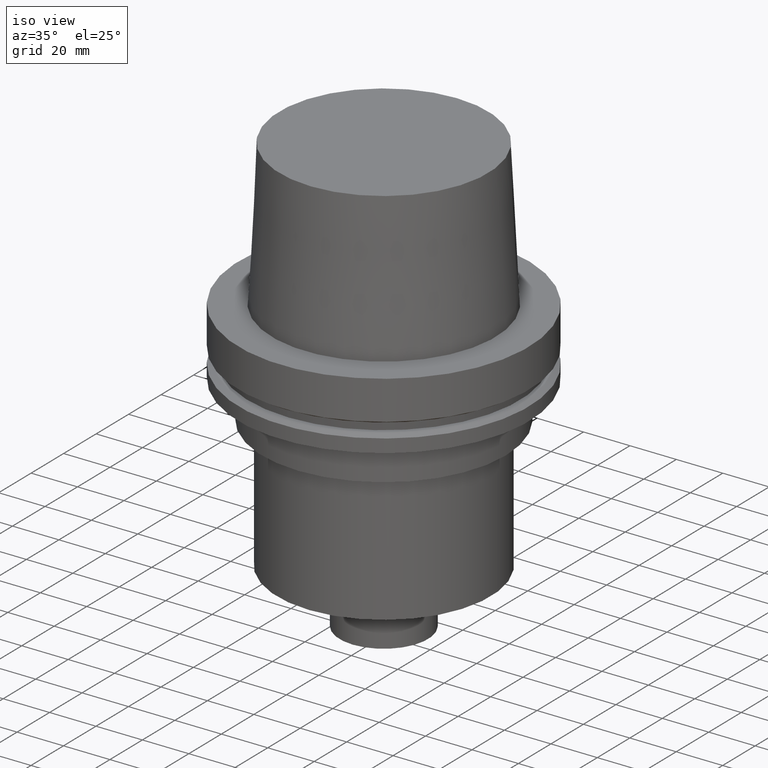
[diagram: clean part render]
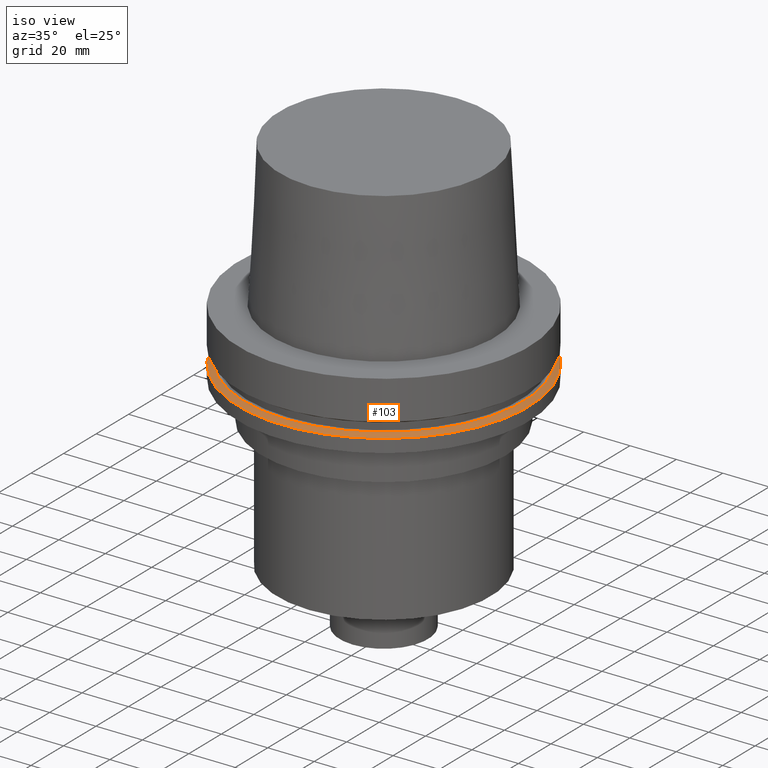
[diagram: same view with one face highlighted and labeled with its STEP entity id]
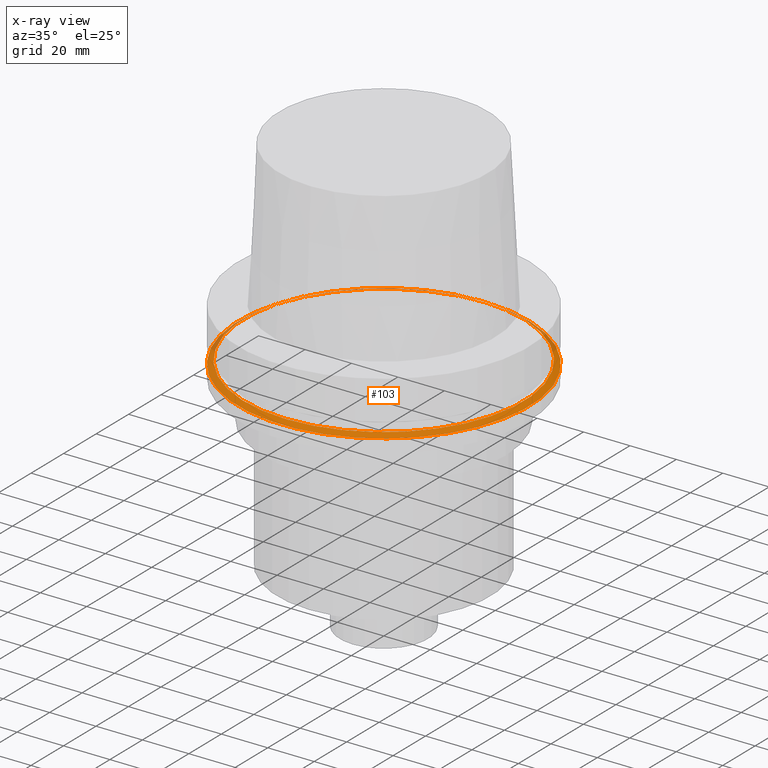
[diagram: x-ray of the same camera — body ghosted, the highlighted face saturated]
A machine part, iso view. The second image highlights one B-rep face of the part: STEP entity #103.
The next image is the same camera in x-ray: the body ghosted, the highlighted face saturated — about 12% of this face is hidden behind the body in this view.
In plain terms, the highlighted conical surface has half-angle 60 deg.
Its self-contained STEP definition (entity closure, byte-faithful):
#103=ADVANCED_FACE('Unnamed[1]',(#234,#235),#236,.T.);
#110=EDGE_CURVE('Unnamed[1]',#246,#246,#247,.T.);
#126=EDGE_CURVE('Unnamed[1]',#270,#270,#271,.T.);
#234=FACE_BOUND('',#397,.T.);
#235=FACE_BOUND('',#398,.T.);
#236=CONICAL_SURFACE('',#399,61.311297632097,1.04719755119646);
#246=VERTEX_POINT('',#412);
#247=CIRCLE('',#413,60.122595264194);
#270=VERTEX_POINT('',#443);
#271=CIRCLE('',#444,62.5);
#397=EDGE_LOOP('',(#568));
#398=EDGE_LOOP('',(#569));
#399=AXIS2_PLACEMENT_3D('',#570,#571,#572);
#412=CARTESIAN_POINT('',(1.33945743656747E-015,60.122595264194,-21.8750000000009));
#413=AXIS2_PLACEMENT_3D('',#582,#583,#584);
#443=CARTESIAN_POINT('',(1.42350465640827E-015,62.5,-23.2475952641916));
#444=AXIS2_PLACEMENT_3D('',#608,#609,#610);
#568=ORIENTED_EDGE('',*,*,#126,.F.);
#569=ORIENTED_EDGE('',*,*,#110,.T.);
#570=CARTESIAN_POINT('',(1.38148104648787E-015,2.76296209297574E-015,-22.5612976320962));
#571=DIRECTION('',(6.12323399573677E-017,1.22464679914783E-016,-1.0));
#572=DIRECTION('',(-1.23259516440758E-032,1.0,1.22464679914783E-016));
#582=CARTESIAN_POINT('',(1.33945743656747E-015,2.67891487313494E-015,-21.8750000000009));
#583=DIRECTION('',(6.12323399573677E-017,1.22464679914738E-016,-1.0));
#584=DIRECTION('',(-1.23259516440791E-032,1.0,1.22464679914738E-016));
#608=CARTESIAN_POINT('',(1.42350465640827E-015,2.84700931281654E-015,-23.2475952641916));
#609=DIRECTION('',(6.12323399573677E-017,1.22464679914723E-016,-1.0));
#610=DIRECTION('',(-1.23259516440783E-032,1.0,1.22464679914723E-016));